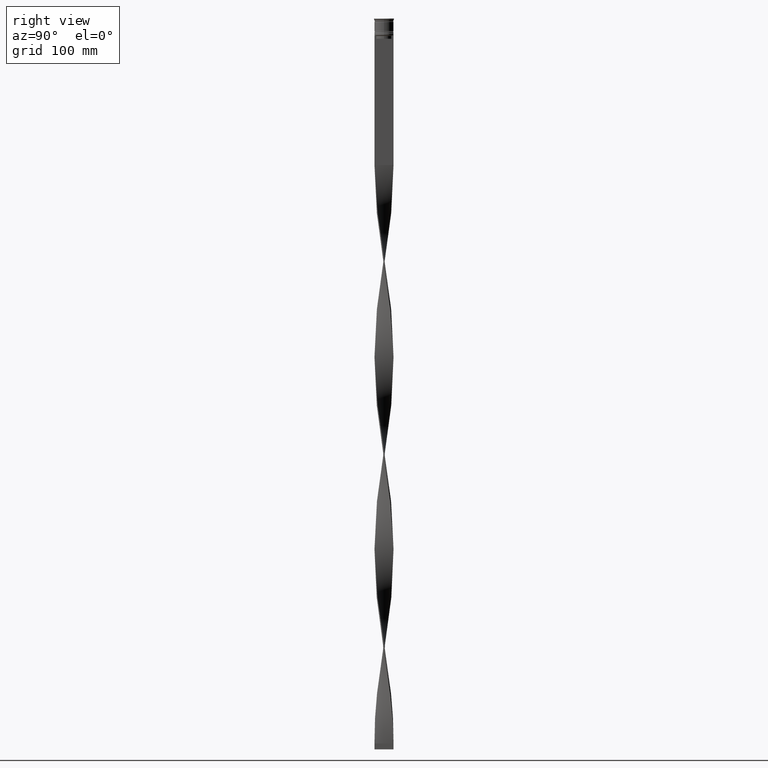
[diagram: clean part render]
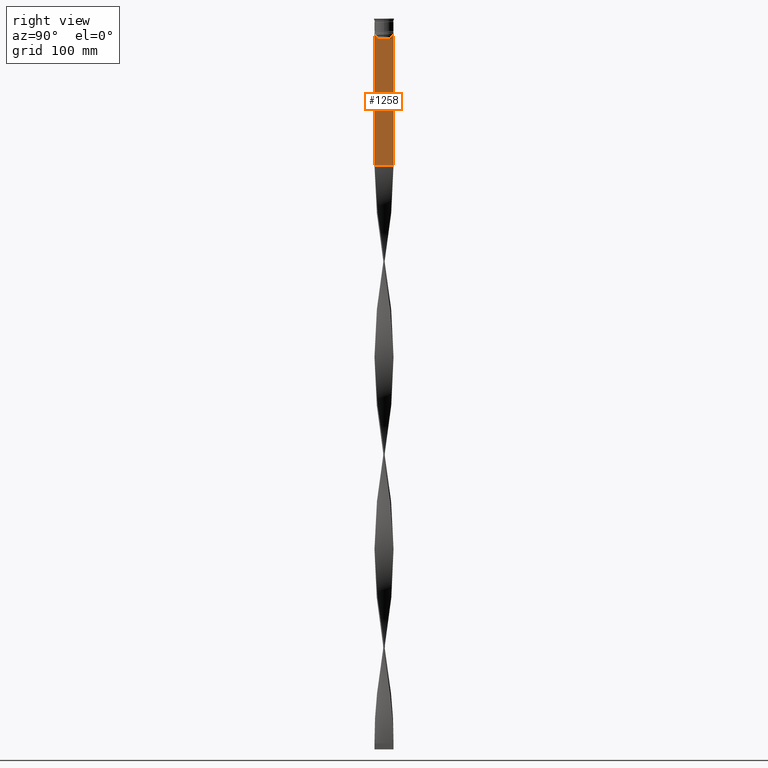
[diagram: same view with one face highlighted and labeled with its STEP entity id]
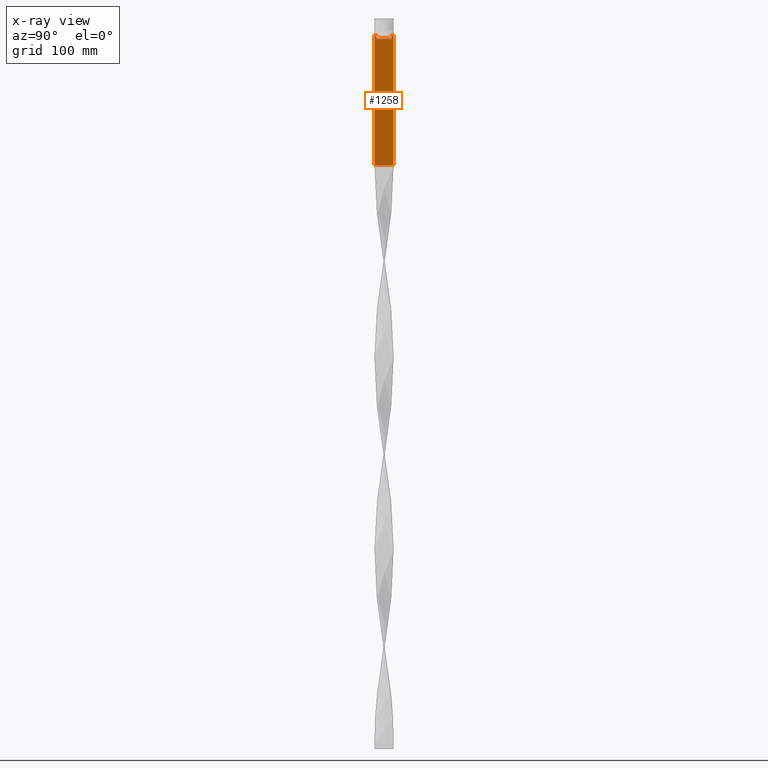
[diagram: x-ray of the same camera — body ghosted, the highlighted face saturated]
A machine part, right view. The second image highlights one B-rep face of the part: STEP entity #1258.
The next image is the same camera in x-ray: the body ghosted, the highlighted face saturated — about 0% of this face is hidden behind the body in this view.
In plain terms, the highlighted planar face has unit normal (-1, 0, 0).
Its self-contained STEP definition (entity closure, byte-faithful):
#7 = ORIENTED_EDGE ( 'NONE', *, *, #4237, .T. ) ;
#18 = CARTESIAN_POINT ( 'NONE',  ( 0.5000000000000001110, -8.000000000000003553, 2.031219541881394530 ) ) ;
#25 = VECTOR ( 'NONE', #3626, 1000.000000000000000 ) ;
#110 = VERTEX_POINT ( 'NONE', #2774 ) ;
#169 = EDGE_CURVE ( 'NONE', #4309, #1270, #2169, .T. ) ;
#206 = CARTESIAN_POINT ( 'NONE',  ( 0.5000000000000001110, 6.399999999999999467, -17.00000000000000000 ) ) ;
#216 = CARTESIAN_POINT ( 'NONE',  ( 0.5000000000000001110, 6.714736947114692711, -14.16668390704818847 ) ) ;
#272 = EDGE_CURVE ( 'NONE', #3734, #1841, #1682, .T. ) ;
#296 = DIRECTION ( 'NONE',  ( 0.000000000000000000, -1.000000000000000000, 0.000000000000000000 ) ) ;
#365 = DIRECTION ( 'NONE',  ( -0.000000000000000000, -0.000000000000000000, 1.000000000000000000 ) ) ;
#441 = CARTESIAN_POINT ( 'NONE',  ( 0.5000000000000001110, -8.000000000000003553, -14.00000000000000178 ) ) ;
#479 = EDGE_LOOP ( 'NONE', ( #1728, #4218, #3555, #7, #1323, #997, #2225, #2570, #4094, #4398, #776, #3302 ) ) ;
#586 = CARTESIAN_POINT ( 'NONE',  ( 0.5000000000000001110, -6.380438856379708312, -14.50000000000000000 ) ) ;
#587 = VECTOR ( 'NONE', #365, 1000.000000000000000 ) ;
#614 = EDGE_CURVE ( 'NONE', #3514, #642, #3897, .T. ) ;
#642 = VERTEX_POINT ( 'NONE', #1870 ) ;
#738 = VECTOR ( 'NONE', #296, 1000.000000000000000 ) ;
#776 = ORIENTED_EDGE ( 'NONE', *, *, #2972, .F. ) ;
#792 = VERTEX_POINT ( 'NONE', #1269 ) ;
#793 = DIRECTION ( 'NONE',  ( 0.000000000000000000, -1.000000000000000000, 0.000000000000000000 ) ) ;
#945 = CARTESIAN_POINT ( 'NONE',  ( 0.5000000000000001110, -6.547597841511247019, -14.33335192438652150 ) ) ;
#957 = CARTESIAN_POINT ( 'NONE',  ( 0.5000000000000001110, -7.884161337770806632, -14.00000000000000178 ) ) ;
#978 = PLANE ( 'NONE',  #2828 ) ;
#997 = ORIENTED_EDGE ( 'NONE', *, *, #1697, .T. ) ;
#1055 = CARTESIAN_POINT ( 'NONE',  ( 0.5000000000000001110, -8.000000000000003553, -14.00000000000000178 ) ) ;
#1056 = DIRECTION ( 'NONE',  ( 0.000000000000000000, 0.000000000000000000, -1.000000000000000000 ) ) ;
#1058 = LINE ( 'NONE', #3113, #3401 ) ;
#1102 = CARTESIAN_POINT ( 'NONE',  ( 0.5000000000000001110, 6.881860213634098500, -14.00000000000000178 ) ) ;
#1144 = DIRECTION ( 'NONE',  ( 0.000000000000000000, -1.000000000000000000, 0.000000000000000000 ) ) ;
#1258 = ADVANCED_FACE ( 'NONE', ( #1656 ), #978, .F. ) ;
#1269 = CARTESIAN_POINT ( 'NONE',  ( 0.5000000000000001110, -6.380438856379708312, -17.00000000000000000 ) ) ;
#1270 = VERTEX_POINT ( 'NONE', #957 ) ;
#1306 = CARTESIAN_POINT ( 'NONE',  ( 0.5000000000000001110, -6.714736947305993908, -14.16668390685738821 ) ) ;
#1323 = ORIENTED_EDGE ( 'NONE', *, *, #1393, .T. ) ;
#1363 = CARTESIAN_POINT ( 'NONE',  ( 0.5000000000000001110, -8.000000000000003553, -123.0000000000000000 ) ) ;
#1385 = CARTESIAN_POINT ( 'NONE',  ( 0.5000000000000001110, -8.000000000000003553, 2.031219541881394530 ) ) ;
#1390 = VECTOR ( 'NONE', #793, 1000.000000000000000 ) ;
#1393 = EDGE_CURVE ( 'NONE', #792, #2802, #3462, .T. ) ;
#1409 = CARTESIAN_POINT ( 'NONE',  ( 0.5000000000000001110, 7.884161337770806632, -14.00000000000000178 ) ) ;
#1433 = CARTESIAN_POINT ( 'NONE',  ( 0.5000000000000001110, -6.380438856379708312, 0.000000000000000000 ) ) ;
#1519 = LINE ( 'NONE', #206, #1545 ) ;
#1545 = VECTOR ( 'NONE', #3303, 1000.000000000000000 ) ;
#1578 = CARTESIAN_POINT ( 'NONE',  ( 0.5000000000000001110, 6.380438856379708312, -14.50000000000000000 ) ) ;
#1652 = CARTESIAN_POINT ( 'NONE',  ( 0.5000000000000001110, -6.881860213634098500, -14.00000000000000178 ) ) ;
#1656 = FACE_OUTER_BOUND ( 'NONE', #479, .T. ) ;
#1682 = B_SPLINE_CURVE_WITH_KNOTS ( 'NONE', 3,
 ( #1102, #216, #4003, #1578 ),
 .UNSPECIFIED., .F., .F.,
 ( 4, 4 ),
 ( 0.01172465562756038263, 0.01243276816391822651 ),
 .UNSPECIFIED. ) ;
#1693 = CARTESIAN_POINT ( 'NONE',  ( 0.5000000000000001110, 6.380438856379708312, -17.00000000000000000 ) ) ;
#1697 = EDGE_CURVE ( 'NONE', #2802, #4309, #3370, .T. ) ;
#1728 = ORIENTED_EDGE ( 'NONE', *, *, #4066, .T. ) ;
#1764 = VECTOR ( 'NONE', #2807, 1000.000000000000000 ) ;
#1841 = VERTEX_POINT ( 'NONE', #1941 ) ;
#1852 = CARTESIAN_POINT ( 'NONE',  ( 0.5000000000000001110, -8.000000000000003553, -123.0000000000000000 ) ) ;
#1870 = CARTESIAN_POINT ( 'NONE',  ( 0.5000000000000001110, 7.999999999999996447, -123.0000000000000000 ) ) ;
#1941 = CARTESIAN_POINT ( 'NONE',  ( 0.5000000000000001110, 6.380438856379708312, -14.50000000000000000 ) ) ;
#2061 = DIRECTION ( 'NONE',  ( 0.000000000000000000, 0.000000000000000000, -1.000000000000000000 ) ) ;
#2089 = DIRECTION ( 'NONE',  ( -1.000000000000000000, 0.000000000000000000, 0.000000000000000000 ) ) ;
#2157 = EDGE_CURVE ( 'NONE', #110, #2563, #3942, .T. ) ;
#2169 = LINE ( 'NONE', #1055, #3552 ) ;
#2225 = ORIENTED_EDGE ( 'NONE', *, *, #169, .T. ) ;
#2338 = LINE ( 'NONE', #3393, #738 ) ;
#2407 = CARTESIAN_POINT ( 'NONE',  ( 0.5000000000000001110, 6.380438856379708312, 0.000000000000000000 ) ) ;
#2423 = CARTESIAN_POINT ( 'NONE',  ( 0.5000000000000001110, -6.380438856379708312, -14.50000000000000000 ) ) ;
#2510 = CARTESIAN_POINT ( 'NONE',  ( 0.5000000000000001110, 6.881860213634098500, -14.00000000000000178 ) ) ;
#2563 = VERTEX_POINT ( 'NONE', #1409 ) ;
#2570 = ORIENTED_EDGE ( 'NONE', *, *, #2589, .T. ) ;
#2589 = EDGE_CURVE ( 'NONE', #1270, #4460, #2338, .T. ) ;
#2624 = CARTESIAN_POINT ( 'NONE',  ( 0.5000000000000001110, -6.881860213634098500, -14.00000000000000178 ) ) ;
#2692 = VECTOR ( 'NONE', #1056, 1000.000000000000000 ) ;
#2700 = DIRECTION ( 'NONE',  ( 0.000000000000000000, 0.000000000000000000, 1.000000000000000000 ) ) ;
#2774 = CARTESIAN_POINT ( 'NONE',  ( 0.5000000000000001110, 7.999999999999996447, -14.00000000000000178 ) ) ;
#2802 = VERTEX_POINT ( 'NONE', #2423 ) ;
#2807 = DIRECTION ( 'NONE',  ( 0.000000000000000000, -1.000000000000000000, 0.000000000000000000 ) ) ;
#2828 = AXIS2_PLACEMENT_3D ( 'NONE', #1385, #2089, #2700 ) ;
#2972 = EDGE_CURVE ( 'NONE', #110, #642, #1058, .T. ) ;
#3113 = CARTESIAN_POINT ( 'NONE',  ( 0.5000000000000001110, 7.999999999999996447, 2.031219541881394530 ) ) ;
#3302 = ORIENTED_EDGE ( 'NONE', *, *, #2157, .T. ) ;
#3303 = DIRECTION ( 'NONE',  ( 0.000000000000000000, -1.000000000000000000, 0.000000000000000000 ) ) ;
#3370 = B_SPLINE_CURVE_WITH_KNOTS ( 'NONE', 3,
 ( #586, #945, #1306, #1652 ),
 .UNSPECIFIED., .F., .F.,
 ( 4, 4 ),
 ( 0.02996184199614751464, 0.03067452609193705923 ),
 .UNSPECIFIED. ) ;
#3386 = LINE ( 'NONE', #18, #2692 ) ;
#3393 = CARTESIAN_POINT ( 'NONE',  ( 0.5000000000000001110, -8.000000000000003553, -14.00000000000000178 ) ) ;
#3401 = VECTOR ( 'NONE', #4152, 1000.000000000000000 ) ;
#3462 = LINE ( 'NONE', #1433, #587 ) ;
#3514 = VERTEX_POINT ( 'NONE', #1363 ) ;
#3552 = VECTOR ( 'NONE', #1144, 1000.000000000000000 ) ;
#3555 = ORIENTED_EDGE ( 'NONE', *, *, #3768, .T. ) ;
#3626 = DIRECTION ( 'NONE',  ( 0.000000000000000000, 1.000000000000000000, 0.000000000000000000 ) ) ;
#3734 = VERTEX_POINT ( 'NONE', #2510 ) ;
#3768 = EDGE_CURVE ( 'NONE', #1841, #4464, #4108, .T. ) ;
#3809 = CARTESIAN_POINT ( 'NONE',  ( 0.5000000000000001110, -8.000000000000003553, -14.00000000000000178 ) ) ;
#3841 = VECTOR ( 'NONE', #2061, 1000.000000000000000 ) ;
#3897 = LINE ( 'NONE', #1852, #25 ) ;
#3942 = LINE ( 'NONE', #441, #1764 ) ;
#3957 = CARTESIAN_POINT ( 'NONE',  ( 0.5000000000000001110, -8.000000000000003553, -14.00000000000000178 ) ) ;
#4003 = CARTESIAN_POINT ( 'NONE',  ( 0.5000000000000001110, 6.547597841304911626, -14.33335192459222718 ) ) ;
#4066 = EDGE_CURVE ( 'NONE', #2563, #3734, #4319, .T. ) ;
#4094 = ORIENTED_EDGE ( 'NONE', *, *, #4434, .T. ) ;
#4108 = LINE ( 'NONE', #2407, #3841 ) ;
#4152 = DIRECTION ( 'NONE',  ( 0.000000000000000000, 0.000000000000000000, -1.000000000000000000 ) ) ;
#4218 = ORIENTED_EDGE ( 'NONE', *, *, #272, .T. ) ;
#4237 = EDGE_CURVE ( 'NONE', #4464, #792, #1519, .T. ) ;
#4309 = VERTEX_POINT ( 'NONE', #2624 ) ;
#4319 = LINE ( 'NONE', #3957, #1390 ) ;
#4398 = ORIENTED_EDGE ( 'NONE', *, *, #614, .T. ) ;
#4434 = EDGE_CURVE ( 'NONE', #4460, #3514, #3386, .T. ) ;
#4460 = VERTEX_POINT ( 'NONE', #3809 ) ;
#4464 = VERTEX_POINT ( 'NONE', #1693 ) ;